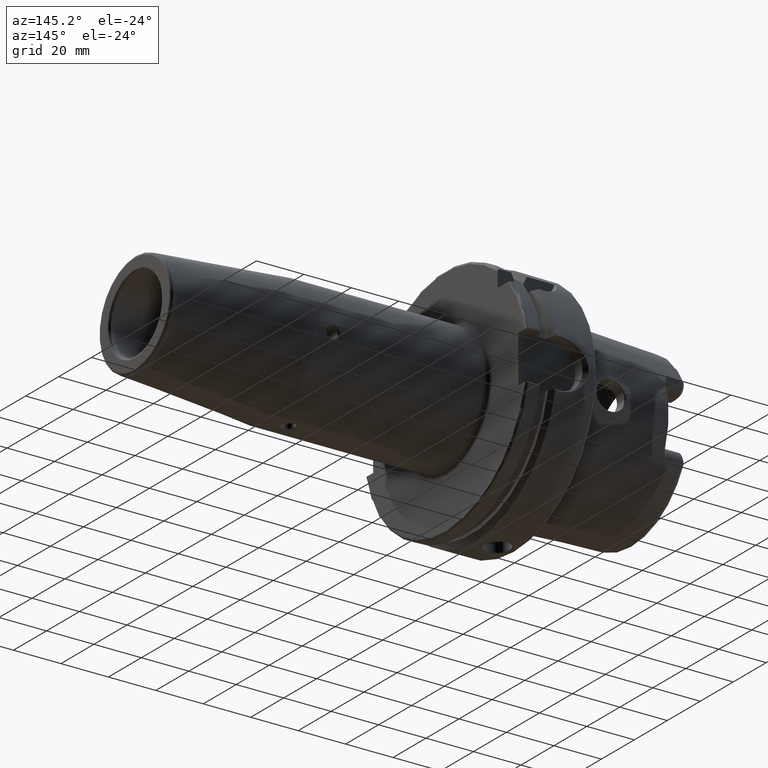
[diagram: clean part render]
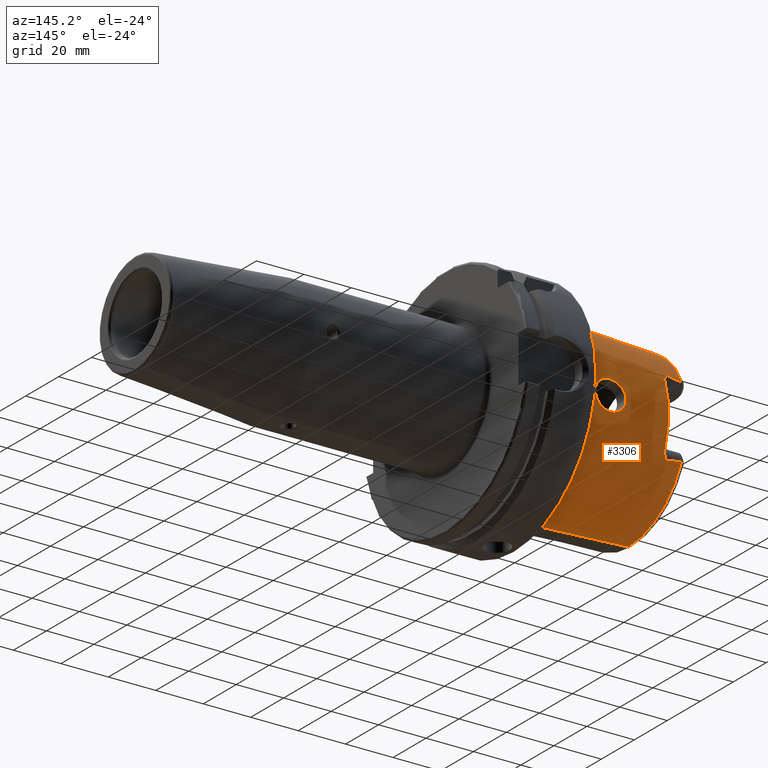
[diagram: same view with one face highlighted and labeled with its STEP entity id]
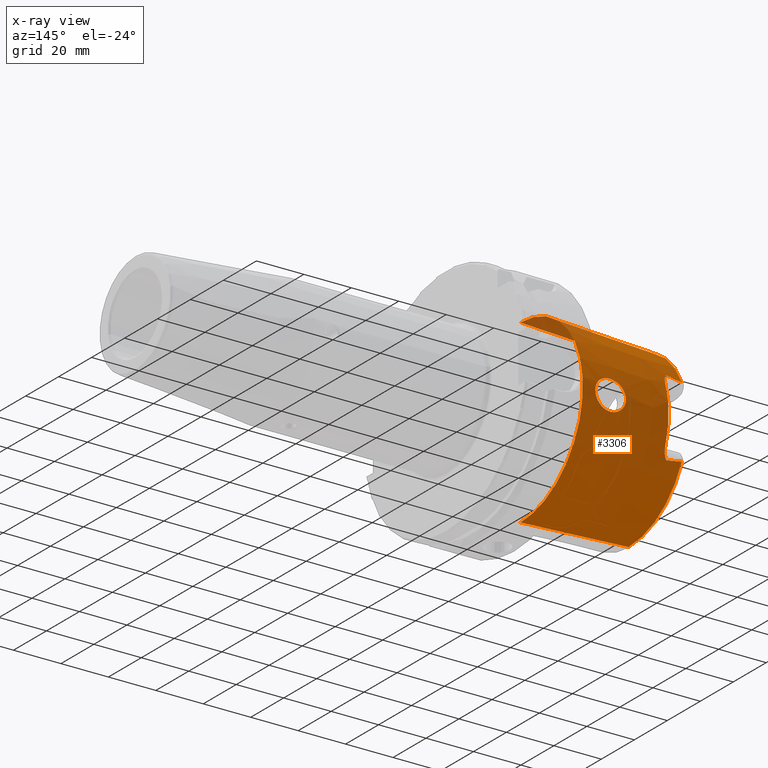
[diagram: x-ray of the same camera — body ghosted, the highlighted face saturated]
A machine part, auxiliary view. The second image highlights one B-rep face of the part: STEP entity #3306.
The next image is the same camera in x-ray: the body ghosted, the highlighted face saturated — about 4% of this face is hidden behind the body in this view.
In plain terms, the highlighted conical surface has half-angle 2.868 deg.
Its self-contained STEP definition (entity closure, byte-faithful):
#2=CARTESIAN_POINT('',(-4.810007223652E1,0.E0,0.E0));
#3=DIRECTION('',(-1.E0,0.E0,0.E0));
#4=DIRECTION('',(0.E0,9.060367502718E-1,-4.231990160161E-1));
#5=AXIS2_PLACEMENT_3D('',#2,#3,#4);
#7=CARTESIAN_POINT('',(-2.500088491128E0,4.656021286601E-9,3.787396633533E1));
#8=CARTESIAN_POINT('',(-2.500088444509E0,1.888740103895E0,3.787396633766E1));
#9=CARTESIAN_POINT('',(-2.516262056837E0,5.666079603161E0,3.759267172396E1));
#10=CARTESIAN_POINT('',(-2.509761497294E0,1.120563070156E1,3.632759442673E1));
#11=CARTESIAN_POINT('',(-2.511503316973E0,1.649483625087E1,3.425192363796E1));
#12=CARTESIAN_POINT('',(-2.511036597801E0,2.141558255922E1,3.141087897888E1));
#13=CARTESIAN_POINT('',(-2.511161654810E0,2.585793792374E1,2.786823218789E1));
#14=CARTESIAN_POINT('',(-2.511128145945E0,2.972267027537E1,2.370303773769E1));
#15=CARTESIAN_POINT('',(-2.511137124397E0,3.292344714483E1,1.900836124902E1));
#16=CARTESIAN_POINT('',(-2.511134719454E0,3.538876865595E1,1.388906812416E1));
#17=CARTESIAN_POINT('',(-2.511135360772E0,3.706356354030E1,8.459516514522E0));
#18=CARTESIAN_POINT('',(-2.511135200443E0,3.791041966799E1,2.840993193301E0));
#19=CARTESIAN_POINT('',(-2.511135200443E0,3.791041966828E1,-2.840993189549E0));
#20=CARTESIAN_POINT('',(-2.511135360772E0,3.706356354113E1,-8.459516510869E0));
#21=CARTESIAN_POINT('',(-2.511134719454E0,3.538876865733E1,-1.388906812065E1));
#22=CARTESIAN_POINT('',(-2.511137124397E0,3.292344714673E1,-1.900836124573E1));
#23=CARTESIAN_POINT('',(-2.511128145943E0,2.972267027773E1,-2.370303773475E1));
#24=CARTESIAN_POINT('',(-2.511161654817E0,2.585793792634E1,-2.786823218546E1));
#25=CARTESIAN_POINT('',(-2.511036597775E0,2.141558256255E1,-3.141087897660E1));
#26=CARTESIAN_POINT('',(-2.511503317070E0,1.649483625404E1,-3.425192363652E1));
#27=CARTESIAN_POINT('',(-2.509761496931E0,1.120563070542E1,-3.632759442522E1));
#28=CARTESIAN_POINT('',(-2.516262058192E0,5.666079609415E0,-3.759267172378E1));
#29=CARTESIAN_POINT('',(-2.500088441588E0,1.888740095305E0,-3.787396633781E1));
#30=CARTESIAN_POINT('',(-2.500088491128E0,-4.656014655163E-9,
-3.787396633533E1));
#32=CARTESIAN_POINT('',(-4.810007223652E1,0.E0,0.E0));
#33=DIRECTION('',(-1.E0,0.E0,0.E0));
#34=DIRECTION('',(0.E0,0.E0,1.E0));
#35=AXIS2_PLACEMENT_3D('',#32,#33,#34);
#37=CARTESIAN_POINT('',(-4.810007223652E1,3.224696179732E1,1.506217324853E1));
#38=CARTESIAN_POINT('',(-4.760626487230E1,3.224472931149E1,1.512541041346E1));
#39=CARTESIAN_POINT('',(-4.665467110945E1,3.223778541994E1,1.525225118060E1));
#40=CARTESIAN_POINT('',(-4.533877942039E1,3.221981223612E1,1.544334127875E1));
#41=CARTESIAN_POINT('',(-4.412438849691E1,3.219380319093E1,1.563726954796E1));
#42=CARTESIAN_POINT('',(-4.300799310316E1,3.215891702196E1,1.583594315735E1));
#43=CARTESIAN_POINT('',(-4.232535112322E1,3.212865311293E1,1.597396756315E1));
#44=CARTESIAN_POINT('',(-4.2E1,3.211131498627E1,1.604513297979E1));
#46=CARTESIAN_POINT('',(-4.810007223652E1,3.224696179732E1,-1.506217324853E1));
#47=CARTESIAN_POINT('',(-4.760626487230E1,3.224472931149E1,-1.512541041346E1));
#48=CARTESIAN_POINT('',(-4.665467110945E1,3.223778541994E1,-1.525225118060E1));
#49=CARTESIAN_POINT('',(-4.533877942039E1,3.221981223612E1,-1.544334127875E1));
#50=CARTESIAN_POINT('',(-4.412438849691E1,3.219380319093E1,-1.563726954796E1));
#51=CARTESIAN_POINT('',(-4.300799310316E1,3.215891702196E1,-1.583594315735E1));
#52=CARTESIAN_POINT('',(-4.232535112322E1,3.212865311293E1,-1.597396756315E1));
#53=CARTESIAN_POINT('',(-4.2E1,3.211131498627E1,-1.604513297979E1));
#55=CARTESIAN_POINT('',(-2.137954779159E1,3.692989749565E1,0.E0));
#56=CARTESIAN_POINT('',(-2.137954779159E1,3.692989749565E1,-4.246180398721E-1));
#57=CARTESIAN_POINT('',(-2.128673759255E1,3.692005252314E1,-1.247417540255E0));
#58=CARTESIAN_POINT('',(-2.089257896192E1,3.688069882026E1,-2.419447136204E0));
#59=CARTESIAN_POINT('',(-2.027140056178E1,3.682597982695E1,-3.478413643194E0));
#60=CARTESIAN_POINT('',(-1.944186493855E1,3.676680671763E1,-4.409426948877E0));
#61=CARTESIAN_POINT('',(-1.842522739439E1,3.671629731471E1,-5.180163247037E0));
#62=CARTESIAN_POINT('',(-1.727293268232E1,3.668869696822E1,-5.749933901282E0));
#63=CARTESIAN_POINT('',(-1.604202236343E1,3.669409444634E1,-6.098969553285E0));
#64=CARTESIAN_POINT('',(-1.478114529082E1,3.673668125440E1,-6.225459200452E0));
#65=CARTESIAN_POINT('',(-1.351368939889E1,3.681704995945E1,-6.131520620636E0));
#66=CARTESIAN_POINT('',(-1.227262885671E1,3.693163859941E1,-5.817454357494E0));
#67=CARTESIAN_POINT('',(-1.107249846882E1,3.707620169114E1,-5.265601784631E0));
#68=CARTESIAN_POINT('',(-1.002347757320E1,3.722937675954E1,-4.514191614884E0));
#69=CARTESIAN_POINT('',(-9.154062426226E0,3.737449989776E1,-3.592660499843E0));
#70=CARTESIAN_POINT('',(-8.493920875559E0,3.749554337078E1,-2.535977316170E0));
#71=CARTESIAN_POINT('',(-8.055645954015E0,3.758102186138E1,-1.328261323789E0));
#72=CARTESIAN_POINT('',(-7.947522918154E0,3.760282678591E1,-4.555279431384E-1));
#73=CARTESIAN_POINT('',(-7.947522918154E0,3.760282678591E1,0.E0));
#75=CARTESIAN_POINT('',(-7.947522918154E0,3.760282678591E1,0.E0));
#76=CARTESIAN_POINT('',(-7.947522918154E0,3.760282678591E1,4.525935065173E-1));
#77=CARTESIAN_POINT('',(-8.054353449232E0,3.758128529051E1,1.320489248427E0));
#78=CARTESIAN_POINT('',(-8.487811605258E0,3.749671550305E1,2.522725444672E0));
#79=CARTESIAN_POINT('',(-9.144050264540E0,3.737626870893E1,3.579704531497E0));
#80=CARTESIAN_POINT('',(-1.001221387362E1,3.723113002214E1,4.504703122384E0));
#81=CARTESIAN_POINT('',(-1.106396004156E1,3.707731463883E1,5.260972209848E0));
#82=CARTESIAN_POINT('',(-1.226599748901E1,3.693233575334E1,5.815196264754E0));
#83=CARTESIAN_POINT('',(-1.350734652814E1,3.681754199427E1,6.130514483551E0));
#84=CARTESIAN_POINT('',(-1.477530650034E1,3.673696189276E1,6.225552715395E0));
#85=CARTESIAN_POINT('',(-1.603647877800E1,3.669419499847E1,6.100048657137E0));
#86=CARTESIAN_POINT('',(-1.726817548153E1,3.668864831222E1,5.751758224998E0));
#87=CARTESIAN_POINT('',(-1.842020004496E1,3.671611716092E1,5.183185429671E0));
#88=CARTESIAN_POINT('',(-1.943667950899E1,3.676649519479E1,4.414066375196E0));
#89=CARTESIAN_POINT('',(-2.026648949031E1,3.682558390667E1,3.485091488706E0));
#90=CARTESIAN_POINT('',(-2.088971303776E1,3.688042119238E1,2.426051736291E0));
#91=CARTESIAN_POINT('',(-2.128601042917E1,3.691997491793E1,1.251796355923E0));
#92=CARTESIAN_POINT('',(-2.137954779159E1,3.692989749565E1,4.262940102684E-1));
#93=CARTESIAN_POINT('',(-2.137954779159E1,3.692989749565E1,0.E0));
#178=CARTESIAN_POINT('',(-4.2E1,3.211131498627E1,-1.604513297979E1));
#179=CARTESIAN_POINT('',(-4.192998820414E1,3.210758402209E1,-1.606044695373E1));
#180=CARTESIAN_POINT('',(-4.179094380341E1,3.211456335701E1,-1.606207905721E1));
#181=CARTESIAN_POINT('',(-4.157898084651E1,3.217127452582E1,-1.597226834239E1));
#182=CARTESIAN_POINT('',(-4.138679375422E1,3.225597308016E1,-1.582258405135E1));
#183=CARTESIAN_POINT('',(-4.120547603417E1,3.235740712436E1,-1.563514640436E1));
#184=CARTESIAN_POINT('',(-4.103216334847E1,3.247070431858E1,-1.541888386408E1));
#185=CARTESIAN_POINT('',(-4.086240492233E1,3.259538571334E1,-1.517388279377E1));
#186=CARTESIAN_POINT('',(-4.069645020463E1,3.273072925297E1,-1.489996245237E1));
#187=CARTESIAN_POINT('',(-4.053769214860E1,3.287455034217E1,-1.459973425269E1));
#188=CARTESIAN_POINT('',(-4.038595883988E1,3.302932533535E1,-1.426564690993E1));
#189=CARTESIAN_POINT('',(-4.024440268E1,3.319735372991E1,-1.388900306311E1));
#190=CARTESIAN_POINT('',(-4.012052851809E1,3.338005349092E1,-1.346123760045E1));
#191=CARTESIAN_POINT('',(-4.002756728480E1,3.357744289008E1,-1.297480157245E1));
#192=CARTESIAN_POINT('',(-4.000000000001E1,3.371753099212E1,-1.260782905975E1));
#193=CARTESIAN_POINT('',(-4.E1,3.378887757491E1,-1.241362953540E1));
#209=CARTESIAN_POINT('',(-4.E1,0.E0,0.E0));
#210=DIRECTION('',(1.E0,0.E0,0.E0));
#211=DIRECTION('',(0.E0,9.386572714716E-1,-3.448514560120E-1));
#212=AXIS2_PLACEMENT_3D('',#209,#210,#211);
#635=DIRECTION('',(-9.987493463681E-1,-1.021037123262E-10,-4.999743122625E-2));
#636=VECTOR('',#635,4.565708494450E1);
#637=CARTESIAN_POINT('',(-2.500088491128E0,4.656021286601E-9,3.787396633533E1));
#638=LINE('',#637,#636);
#639=CARTESIAN_POINT('',(-2.500088491128E0,-4.656014655163E-9,
-3.787396633533E1));
#662=CARTESIAN_POINT('',(-2.500088491128E0,4.656021286601E-9,3.787396633533E1));
#664=DIRECTION('',(-9.987493463681E-1,1.021044836784E-10,4.999743122625E-2));
#665=VECTOR('',#664,4.565708494450E1);
#666=CARTESIAN_POINT('',(-2.500088491128E0,-4.656014655163E-9,
-3.787396633533E1));
#667=LINE('',#666,#665);
#1169=CARTESIAN_POINT('',(-4.E1,3.378887757491E1,1.241362953540E1));
#1170=CARTESIAN_POINT('',(-4.E1,3.372146355514E1,1.259712494698E1));
#1171=CARTESIAN_POINT('',(-4.002461321078E1,3.358718522381E1,1.294984660589E1));
#1172=CARTESIAN_POINT('',(-4.011492265392E1,3.338929117470E1,1.343921019691E1));
#1173=CARTESIAN_POINT('',(-4.024180767753E1,3.320009180081E1,1.388304100042E1));
#1174=CARTESIAN_POINT('',(-4.039267953825E1,3.302139422602E1,1.428339912804E1));
#1175=CARTESIAN_POINT('',(-4.055645970713E1,3.285632342277E1,1.463854358776E1));
#1176=CARTESIAN_POINT('',(-4.072395055112E1,3.270719923388E1,1.494824966393E1));
#1177=CARTESIAN_POINT('',(-4.089191642684E1,3.257279273580E1,1.521877239326E1));
#1178=CARTESIAN_POINT('',(-4.105913829846E1,3.245218730803E1,1.545463287979E1));
#1179=CARTESIAN_POINT('',(-4.123235050054E1,3.234121890838E1,1.566547892019E1));
#1180=CARTESIAN_POINT('',(-4.140908389693E1,3.224539664296E1,1.584152574741E1));
#1181=CARTESIAN_POINT('',(-4.158707923877E1,3.216887581640E1,1.597615547539E1));
#1182=CARTESIAN_POINT('',(-4.179594520284E1,3.211397864099E1,1.606269068128E1));
#1183=CARTESIAN_POINT('',(-4.193142421856E1,3.210766054803E1,1.606013284827E1));
#1184=CARTESIAN_POINT('',(-4.2E1,3.211131498627E1,1.604513297979E1));
#2822=VERTEX_POINT('',#639);
#2823=VERTEX_POINT('',#662);
#2943=CARTESIAN_POINT('',(-4.E1,3.378887757493E1,-1.241362953536E1));
#2945=VERTEX_POINT('',#2943);
#2947=CARTESIAN_POINT('',(-4.2E1,3.211131498627E1,-1.604513297979E1));
#2949=VERTEX_POINT('',#2947);
#2951=CARTESIAN_POINT('',(-4.2E1,3.211131498627E1,1.604513297979E1));
#2953=VERTEX_POINT('',#2951);
#2955=CARTESIAN_POINT('',(-4.E1,3.378887757493E1,1.241362953536E1));
#2957=VERTEX_POINT('',#2955);
#2991=CARTESIAN_POINT('',(-4.810007223652E1,0.E0,-3.559122937082E1));
#2993=VERTEX_POINT('',#2991);
#2995=CARTESIAN_POINT('',(-4.810007223652E1,3.224696179732E1,
-1.506217324853E1));
#2996=VERTEX_POINT('',#2995);
#2997=CARTESIAN_POINT('',(-4.810007223652E1,0.E0,3.559122937082E1));
#2998=CARTESIAN_POINT('',(-4.810007223652E1,3.224696179732E1,1.506217324853E1));
#2999=VERTEX_POINT('',#2997);
#3000=VERTEX_POINT('',#2998);
#3075=VERTEX_POINT('',#55);
#3076=VERTEX_POINT('',#73);
#3273=CARTESIAN_POINT('',(-2.530012460967E1,0.E0,0.E0));
#3274=DIRECTION('',(1.E0,0.E0,0.E0));
#3275=DIRECTION('',(0.E0,0.E0,1.E0));
#3276=AXIS2_PLACEMENT_3D('',#3273,#3274,#3275);
#3277=CONICAL_SURFACE('',#3276,3.673348102081E1,2.868056E0);
#3279=ORIENTED_EDGE('',*,*,#3278,.T.);
#3281=ORIENTED_EDGE('',*,*,#3280,.F.);
#3283=ORIENTED_EDGE('',*,*,#3282,.F.);
#3285=ORIENTED_EDGE('',*,*,#3284,.T.);
#3287=ORIENTED_EDGE('',*,*,#3286,.T.);
#3289=ORIENTED_EDGE('',*,*,#3288,.T.);
#3291=ORIENTED_EDGE('',*,*,#3290,.F.);
#3293=ORIENTED_EDGE('',*,*,#3292,.F.);
#3295=ORIENTED_EDGE('',*,*,#3294,.F.);
#3297=ORIENTED_EDGE('',*,*,#3296,.F.);
#3298=EDGE_LOOP('',(#3279,#3281,#3283,#3285,#3287,#3289,#3291,#3293,#3295,
#3297));
#3299=FACE_OUTER_BOUND('',#3298,.F.);
#3301=ORIENTED_EDGE('',*,*,#3300,.F.);
#3303=ORIENTED_EDGE('',*,*,#3302,.F.);
#3304=EDGE_LOOP('',(#3301,#3303));
#3305=FACE_BOUND('',#3304,.F.);
#3306=ADVANCED_FACE('',(#3299,#3305),#3277,.T.);
#6=CIRCLE('',#5,3.559122937082E1);
#31=B_SPLINE_CURVE_WITH_KNOTS('',3,(#7,#8,#9,#10,#11,#12,#13,#14,#15,#16,#17,
#18,#19,#20,#21,#22,#23,#24,#25,#26,#27,#28,#29,#30),.UNSPECIFIED.,.F.,.F.,(4,1,
1,1,1,1,1,1,1,1,1,1,1,1,1,1,1,1,1,1,1,4),(0.E0,4.761904761905E-2,
9.523809523810E-2,1.428571428571E-1,1.904761904762E-1,2.380952380952E-1,
2.857142857143E-1,3.333333333333E-1,3.809523809524E-1,4.285714285714E-1,
4.761904761905E-1,5.238095238095E-1,5.714285714286E-1,6.190476190476E-1,
6.666666666667E-1,7.142857142857E-1,7.619047619048E-1,8.095238095238E-1,
8.571428571429E-1,9.047619047619E-1,9.523809523810E-1,1.E0),.UNSPECIFIED.);
#36=CIRCLE('',#35,3.559122937082E1);
#45=B_SPLINE_CURVE_WITH_KNOTS('',3,(#37,#38,#39,#40,#41,#42,#43,#44),
.UNSPECIFIED.,.F.,.F.,(4,1,1,1,1,4),(0.E0,2.E-1,4.E-1,6.E-1,8.E-1,1.E0),
.UNSPECIFIED.);
#54=B_SPLINE_CURVE_WITH_KNOTS('',3,(#46,#47,#48,#49,#50,#51,#52,#53),
.UNSPECIFIED.,.F.,.F.,(4,1,1,1,1,4),(0.E0,2.E-1,4.E-1,6.E-1,8.E-1,1.E0),
.UNSPECIFIED.);
#74=B_SPLINE_CURVE_WITH_KNOTS('',3,(#55,#56,#57,#58,#59,#60,#61,#62,#63,#64,#65,
#66,#67,#68,#69,#70,#71,#72,#73),.UNSPECIFIED.,.F.,.F.,(4,1,1,1,1,1,1,1,1,1,1,1,
1,1,1,1,4),(0.E0,6.25E-2,1.25E-1,1.875E-1,2.5E-1,3.125E-1,3.75E-1,4.375E-1,
5.E-1,5.625E-1,6.25E-1,6.875E-1,7.5E-1,8.125E-1,8.75E-1,9.375E-1,1.E0),
.UNSPECIFIED.);
#94=B_SPLINE_CURVE_WITH_KNOTS('',3,(#75,#76,#77,#78,#79,#80,#81,#82,#83,#84,#85,
#86,#87,#88,#89,#90,#91,#92,#93),.UNSPECIFIED.,.F.,.F.,(4,1,1,1,1,1,1,1,1,1,1,1,
1,1,1,1,4),(0.E0,6.25E-2,1.25E-1,1.875E-1,2.5E-1,3.125E-1,3.75E-1,4.375E-1,
5.E-1,5.625E-1,6.25E-1,6.875E-1,7.5E-1,8.125E-1,8.75E-1,9.375E-1,1.E0),
.UNSPECIFIED.);
#194=B_SPLINE_CURVE_WITH_KNOTS('',3,(#178,#179,#180,#181,#182,#183,#184,#185,
#186,#187,#188,#189,#190,#191,#192,#193),.UNSPECIFIED.,.F.,.F.,(4,1,1,1,1,1,1,1,
1,1,1,1,1,4),(0.E0,7.692307692308E-2,1.538461538462E-1,2.307692307692E-1,
3.076923076923E-1,3.846153846154E-1,4.615384615385E-1,5.384615384615E-1,
6.153846153846E-1,6.923076923077E-1,7.692307692308E-1,8.461538461538E-1,
9.230769230769E-1,1.E0),.UNSPECIFIED.);
#213=CIRCLE('',#212,3.599703385023E1);
#1185=B_SPLINE_CURVE_WITH_KNOTS('',3,(#1169,#1170,#1171,#1172,#1173,#1174,#1175,
#1176,#1177,#1178,#1179,#1180,#1181,#1182,#1183,#1184),.UNSPECIFIED.,.F.,.F.,(4,
1,1,1,1,1,1,1,1,1,1,1,1,4),(0.E0,7.692307692308E-2,1.538461538462E-1,
2.307692307692E-1,3.076923076923E-1,3.846153846154E-1,4.615384615385E-1,
5.384615384615E-1,6.153846153846E-1,6.923076923077E-1,7.692307692308E-1,
8.461538461538E-1,9.230769230769E-1,1.E0),.UNSPECIFIED.);
#3278=EDGE_CURVE('',#2996,#2993,#6,.T.);
#3280=EDGE_CURVE('',#2822,#2993,#667,.T.);
#3282=EDGE_CURVE('',#2823,#2822,#31,.T.);
#3284=EDGE_CURVE('',#2823,#2999,#638,.T.);
#3286=EDGE_CURVE('',#2999,#3000,#36,.T.);
#3288=EDGE_CURVE('',#3000,#2953,#45,.T.);
#3290=EDGE_CURVE('',#2957,#2953,#1185,.T.);
#3292=EDGE_CURVE('',#2945,#2957,#213,.T.);
#3294=EDGE_CURVE('',#2949,#2945,#194,.T.);
#3296=EDGE_CURVE('',#2996,#2949,#54,.T.);
#3300=EDGE_CURVE('',#3075,#3076,#74,.T.);
#3302=EDGE_CURVE('',#3076,#3075,#94,.T.);